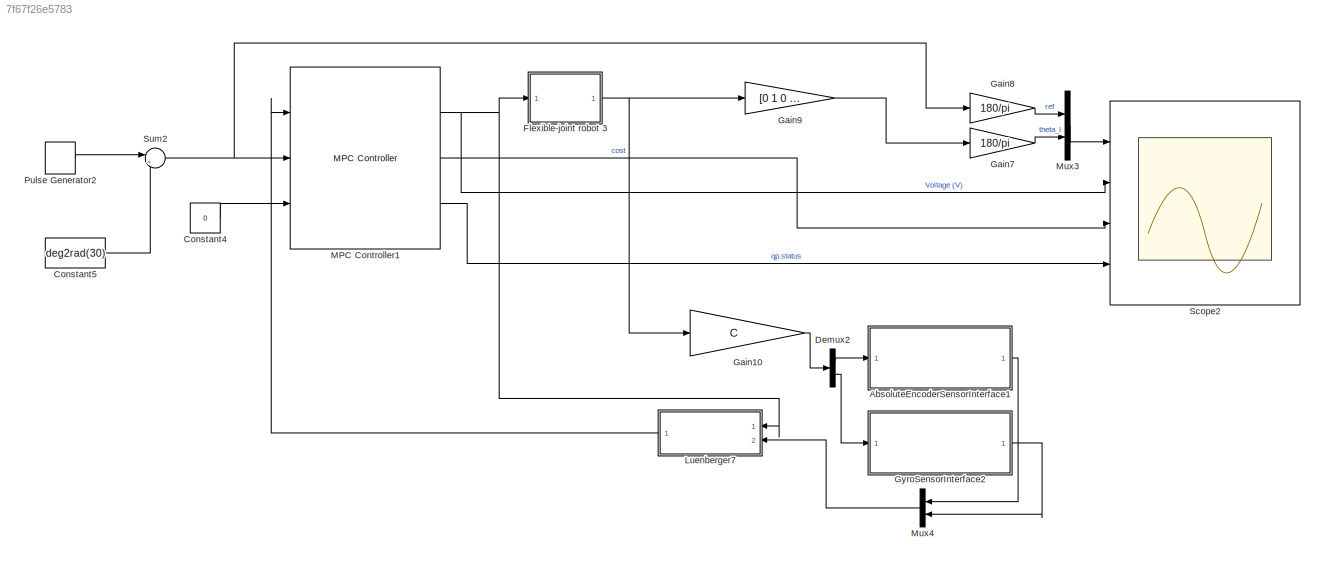
MODEL slx_7f67f26e5783
KIND model
CONFIG AbsTol = auto
CONFIG EnableMultiTasking = off
CONFIG FixedStep = auto
CONFIG InitFcn = mpc_example_regulation
CONFIG MaxStep = auto
CONFIG MinStep = auto
CONFIG RelTol = 1e-3
CONFIG SampleTimeConstraint = Unconstrained
CONFIG SolverName = VariableStepAuto
CONFIG StartTime = 0.0
CONFIG StopTime = 10
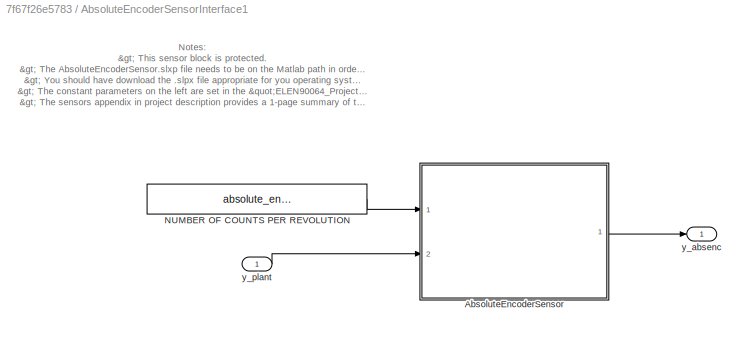
BLOCK [SubSystem] AbsoluteEncoderSensorInterface1
  Ports = [1, 1]
  RequestExecContextInheritance = off
  TreatAsAtomicUnit = on
BLOCK [ModelReference] AbsoluteEncoderSensorInterface1/AbsoluteEncoderSensor
  CopyOfModelProtected = on
  ModelNameDialog = AbsoluteEncoderSensor.slxp
  ModelReferenceVersion = 1.16
  Ports = [2, 1]
BLOCK [Constant] AbsoluteEncoderSensorInterface1/NUMBER OF COUNTS PER REVOLUTION
  Value = absolute_encoder_counts_per_revolution
BLOCK [Outport] AbsoluteEncoderSensorInterface1/y_absenc
BLOCK [Inport] AbsoluteEncoderSensorInterface1/y_plant
BLOCK [Constant] Constant4
  Value = 0
BLOCK [Constant] Constant5
  Value = deg2rad(30)
BLOCK [Demux] Demux2
  Outputs = 2
  Ports = [1, 2]
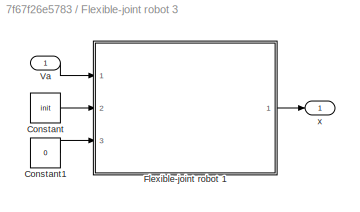
BLOCK [SubSystem] Flexible-joint robot 3
  Ports = [1, 1]
  RequestExecContextInheritance = off
BLOCK [Constant] Flexible-joint robot 3/Constant
  Value = init
BLOCK [Constant] Flexible-joint robot 3/Constant1
  Value = 0
BLOCK [ModelReference] Flexible-joint robot 3/Flexible-joint robot 1
  CopyOfModelProtected = on
  ModelNameDialog = Flexible_joint_robot_1
  ModelReferenceVersion = 1.65
  Ports = [3, 1]
BLOCK [Inport] Flexible-joint robot 3/Va
BLOCK [Outport] Flexible-joint robot 3/x
BLOCK [Gain] Gain10
  Gain = C
  Multiplication = Matrix(K*u) (u vector)
BLOCK [Gain] Gain7
  Gain = 180/pi
BLOCK [Gain] Gain8
  Gain = 180/pi
BLOCK [Gain] Gain9
  Gain = [0 1 0 0 0]
  Multiplication = Matrix(K*u)
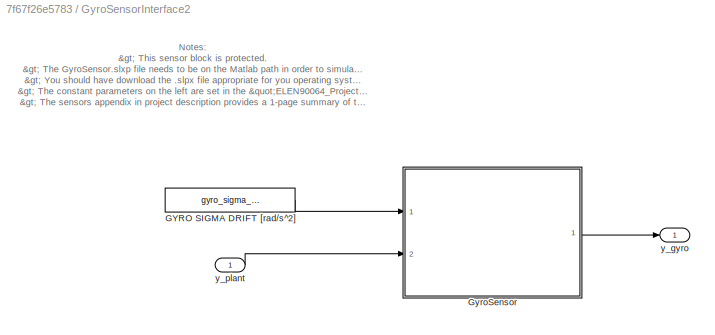
BLOCK [SubSystem] GyroSensorInterface2
  Ports = [1, 1]
  RequestExecContextInheritance = off
  TreatAsAtomicUnit = on
BLOCK [Constant] GyroSensorInterface2/GYRO SIGMA DRIFT [rad//s^2]
  Value = gyro_sigma_drift
BLOCK [ModelReference] GyroSensorInterface2/GyroSensor
  CopyOfModelProtected = on
  ModelNameDialog = GyroSensor.slxp
  ModelReferenceVersion = 1.18
  Ports = [2, 1]
BLOCK [Outport] GyroSensorInterface2/y_gyro
BLOCK [Inport] GyroSensorInterface2/y_plant
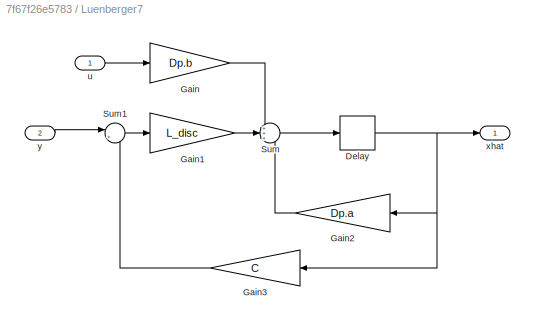
BLOCK [SubSystem] Luenberger7
  Ports = [2, 1]
  RequestExecContextInheritance = off
  TreatAsAtomicUnit = on
BLOCK [Delay] Luenberger7/Delay
  DelayLength = 1
  InputPortMap = u0
  Ports = [1, 1]
BLOCK [Gain] Luenberger7/Gain
  Gain = Dp.b
  Multiplication = Matrix(K*u) (u vector)
BLOCK [Gain] Luenberger7/Gain1
  Gain = L_disc
  Multiplication = Matrix(K*u) (u vector)
BLOCK [Gain] Luenberger7/Gain2
  Gain = Dp.a
  Multiplication = Matrix(K*u) (u vector)
  NameLocation = top
BLOCK [Gain] Luenberger7/Gain3
  Gain = C
  Multiplication = Matrix(K*u) (u vector)
  NameLocation = top
BLOCK [Sum] Luenberger7/Sum
  Inputs = +++
  Ports = [3, 1]
BLOCK [Sum] Luenberger7/Sum1
  Inputs = |+-
  Ports = [2, 1]
BLOCK [Inport] Luenberger7/u
BLOCK [Outport] Luenberger7/xhat
BLOCK [Inport] Luenberger7/y
  Port = 2
BLOCK [Reference] MPC Controller1  REF=mpclib/MPC Controller  (lib defined in mdl_ae329e0e0455)
  Ports = [3, 3]
  SCDEnableBlockLinearizationSpecification = on
  SourceBlock = mpclib/MPC Controller
  SourceProductBaseCode = MP
  SourceType = MPC
BLOCK [Mux] Mux3
  DisplayOption = bar
  Inputs = 2
  Ports = [2, 1]
BLOCK [Mux] Mux4
  DisplayOption = bar
  Inputs = 2
  NameLocation = top
  Ports = [2, 1]
BLOCK [DiscretePulseGenerator] Pulse Generator2
  Amplitude = deg2rad(30)
  Period = 5
  Ports = [0, 1]
  PulseType = Time based
  PulseWidth = 50
BLOCK [Scope] Scope2
  Floating = off
  NumInputPorts = 4
  Ports = [4]
  ScopeSpecificationString = Simulink.scopes.TimeScopeBlockCfg('CurrentConfiguration', extmgr.ConfigurationSet(extmgr.Configuration('Core','General UI',true,'FigureColor',[1 1 1]),extmgr.Configuration('Core','Source UI',true),extmgr.Configuration('Sources','WiredSimulink',true,'DataLoggingVariableName','ScopeData2'),extmgr.Configuration('Visuals','Time Domain',true,'SerializedDisplays',{struct('MinYLimReal','-7.5','MaxYLimRea...<+4161ch>
BLOCK [Sum] Sum2
  Inputs = |++
  Ports = [2, 1]
ANNOTATION AbsoluteEncoderSensorInterface1: Notes: > This sensor block is protected. > The AbsoluteEncoderSensor.slxp file needs to be on the Matlab path in order to simulate this sensor. > You should have download the .slpx file appropriate for you operating system {Windows, Mac, Linux}. > The constant parameters on the left are set in the " ELEN90064_Project_Parameters.m " script. > The sensors appendix in project description provides a 1...<+190ch>
ANNOTATION GyroSensorInterface2: Notes: > This sensor block is protected. > The GyroSensor.slxp file needs to be on the Matlab path in order to simulate this sensor. > You should have download the .slpx file appropriate for you operating system {Windows, Mac, Linux}. > The constant parameters on the left are set in the " ELEN90064_Project_Parameters.m " script. > The sensors appendix in project description provides a 1-page summa...<+179ch>
LINE AbsoluteEncoderSensorInterface1/AbsoluteEncoderSensor:1 -> AbsoluteEncoderSensorInterface1/y_absenc:1
LINE AbsoluteEncoderSensorInterface1/NUMBER OF COUNTS PER REVOLUTION:1 -> AbsoluteEncoderSensorInterface1/AbsoluteEncoderSensor:1
LINE AbsoluteEncoderSensorInterface1/y_plant:1 -> AbsoluteEncoderSensorInterface1/AbsoluteEncoderSensor:2
LINE AbsoluteEncoderSensorInterface1:1 -> Mux4:1
LINE Constant4:1 -> MPC Controller1:3
LINE Constant5:1 -> Sum2:2
LINE Demux2:1 -> AbsoluteEncoderSensorInterface1:1
LINE Demux2:2 -> GyroSensorInterface2:1
LINE Flexible-joint robot 3/Constant1:1 -> Flexible-joint robot 3/Flexible-joint robot 1:3
LINE Flexible-joint robot 3/Constant:1 -> Flexible-joint robot 3/Flexible-joint robot 1:2
LINE Flexible-joint robot 3/Flexible-joint robot 1:1 -> Flexible-joint robot 3/x:1
LINE Flexible-joint robot 3/Va:1 -> Flexible-joint robot 3/Flexible-joint robot 1:1
NET Flexible-joint robot 3:1 -> Gain10:1, Gain9:1
LINE Gain10:1 -> Demux2:1
LINE Gain7:1 -> Mux3:2
LINE Gain8:1 -> Mux3:1
LINE Gain9:1 -> Gain7:1
LINE GyroSensorInterface2/GYRO SIGMA DRIFT [rad//s^2]:1 -> GyroSensorInterface2/GyroSensor:1
LINE GyroSensorInterface2/GyroSensor:1 -> GyroSensorInterface2/y_gyro:1
LINE GyroSensorInterface2/y_plant:1 -> GyroSensorInterface2/GyroSensor:2
LINE GyroSensorInterface2:1 -> Mux4:2
NET Luenberger7/Delay:1 -> Luenberger7/Gain2:1, Luenberger7/Gain3:1, Luenberger7/xhat:1
LINE Luenberger7/Gain1:1 -> Luenberger7/Sum:2
LINE Luenberger7/Gain2:1 -> Luenberger7/Sum:3
LINE Luenberger7/Gain3:1 -> Luenberger7/Sum1:2
LINE Luenberger7/Gain:1 -> Luenberger7/Sum:1
LINE Luenberger7/Sum1:1 -> Luenberger7/Gain1:1
LINE Luenberger7/Sum:1 -> Luenberger7/Delay:1
LINE Luenberger7/u:1 -> Luenberger7/Gain:1
LINE Luenberger7/y:1 -> Luenberger7/Sum1:1
LINE Luenberger7:1 -> MPC Controller1:1
NET MPC Controller1:1 -> Flexible-joint robot 3:1, Luenberger7:1, Scope2:2
LINE MPC Controller1:2 -> Scope2:3
LINE MPC Controller1:3 -> Scope2:4
LINE Mux3:1 -> Scope2:1
LINE Mux4:1 -> Luenberger7:2
LINE Pulse Generator2:1 -> Sum2:1
NET Sum2:1 -> Gain8:1, MPC Controller1:2
note: NET lines group one-source signal fan-out (src -> all destinations, sorted); 1:1 wires keep LINE
